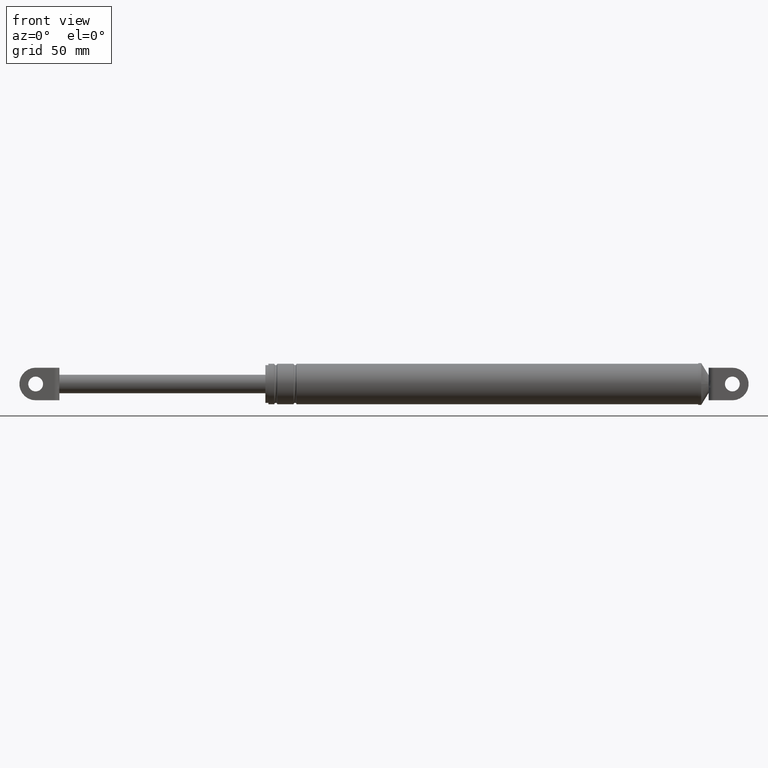
[diagram: clean part render]
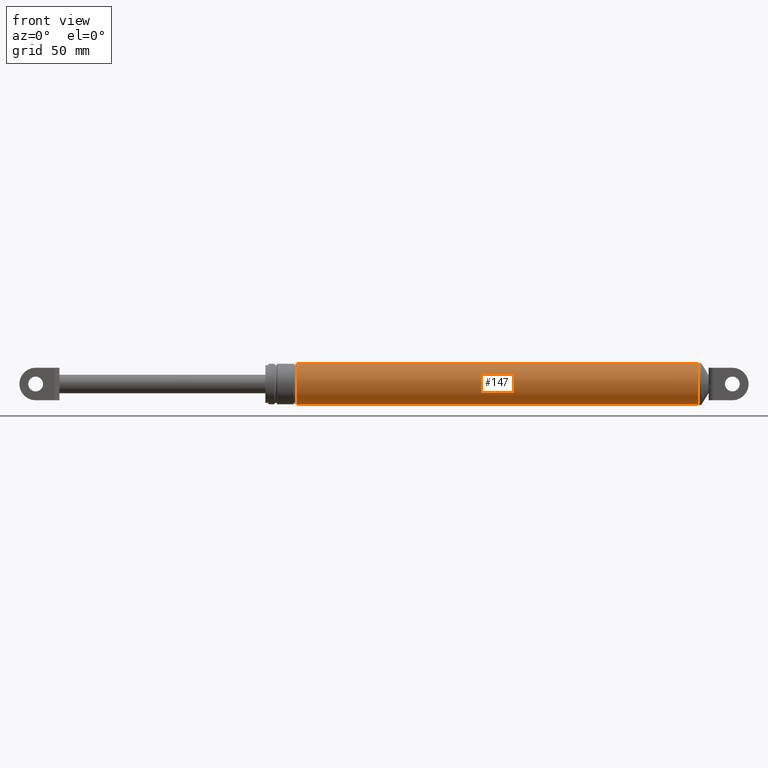
[diagram: same view with one face highlighted and labeled with its STEP entity id]
A machine part, front view. The second image highlights one B-rep face of the part: STEP entity #147.
In plain terms, the highlighted cylindrical surface (edge-blend (fillet) strip) has radius 13.7 mm, axis along (-1, -0, -0).
Its self-contained STEP definition (entity closure, byte-faithful):
#147=ADVANCED_FACE('',(#533),#532,.T.);
#532=CYLINDRICAL_SURFACE('',#1542,1.37000000000E+001);
#533=FACE_OUTER_BOUND('',#1543,.T.);
#1539=CARTESIAN_POINT('',(1.36683871323E+002,-1.78323129188E-014,1.88612980532E+002));
#1540=DIRECTION('',(-1.00000000000E+000,-0.00000000000E+000,-0.00000000000E+000));
#1541=DIRECTION('',(0.00000000000E+000,-1.30162868020E-015,1.00000000000E+000));
#1542=AXIS2_PLACEMENT_3D('',#1539,#1540,#1541);
#1543=EDGE_LOOP('',(#2133,#2134,#2135,#2136));
#2133=ORIENTED_EDGE('',*,*,#2292,.T.);
#2134=ORIENTED_EDGE('',*,*,#2371,.T.);
#2135=ORIENTED_EDGE('',*,*,#2370,.F.);
#2136=ORIENTED_EDGE('',*,*,#2372,.F.);
#2292=EDGE_CURVE('',#2486,#2485,#2493,.T.);
#2370=EDGE_CURVE('',#2996,#2989,#3009,.T.);
#2371=EDGE_CURVE('',#2485,#2989,#3015,.T.);
#2372=EDGE_CURVE('',#2486,#2996,#3021,.T.);
#2485=VERTEX_POINT('',#3521);
#2486=VERTEX_POINT('',#3522);
#2493=CIRCLE('',#3530,1.37000000000E+001);
#2989=VERTEX_POINT('',#3843);
#2996=VERTEX_POINT('',#3849);
#3009=CIRCLE('',#3864,1.37000000000E+001);
#3015=(BOUNDED_CURVE() B_SPLINE_CURVE(1,(#3865,#3866),.UNSPECIFIED.,.F.,.F.) B_SPLINE_CURVE_WITH_KNOTS((2,2),(3.43642611991E-002,9.65635738753E-001),.UNSPECIFIED.) CURVE() GEOMETRIC_REPRESENTATION_ITEM() RATIONAL_B_SPLINE_CURVE((1.00000000000E+000,1.00000000000E+000)) REPRESENTATION_ITEM('') );
#3021=(BOUNDED_CURVE() B_SPLINE_CURVE(1,(#3867,#3868),.UNSPECIFIED.,.F.,.F.) B_SPLINE_CURVE_WITH_KNOTS((2,2),(3.43642611684E-002,9.65635738832E-001),.UNSPECIFIED.) CURVE() GEOMETRIC_REPRESENTATION_ITEM() RATIONAL_B_SPLINE_CURVE((7.50000000000E-001,7.50000000000E-001)) REPRESENTATION_ITEM('') );
#3521=CARTESIAN_POINT('',(4.17683871323E+002,2.30926389122E-014,2.02312980532E+002));
#3522=CARTESIAN_POINT('',(4.17683871323E+002,7.52689430633E-015,1.74912980532E+002));
#3527=CARTESIAN_POINT('',(4.17683871323E+002,1.12117697108E-014,1.88612980532E+002));
#3528=DIRECTION('',(-1.00000000000E+000,0.00000000000E+000,0.00000000000E+000));
#3529=DIRECTION('',(-0.00000000000E+000,-8.35518852861E-016,-1.00000000000E+000));
#3530=AXIS2_PLACEMENT_3D('',#3527,#3528,#3529);
#3843=CARTESIAN_POINT('',(1.46683871323E+002,2.30926389122E-014,2.02312980532E+002));
#3849=CARTESIAN_POINT('',(1.46683871323E+002,7.52689430633E-015,1.74912980532E+002));
#3861=CARTESIAN_POINT('',(1.46683871323E+002,1.12117697108E-014,1.88612980532E+002));
#3862=DIRECTION('',(-1.00000000000E+000,0.00000000000E+000,0.00000000000E+000));
#3863=DIRECTION('',(-0.00000000000E+000,-8.35518852861E-016,-1.00000000000E+000));
#3864=AXIS2_PLACEMENT_3D('',#3861,#3862,#3863);
#3865=CARTESIAN_POINT('',(4.17683871314E+002,-3.56646258375E-014,2.02312980532E+002));
#3866=CARTESIAN_POINT('',(1.46683871346E+002,-3.56646258375E-014,2.02312980532E+002));
#3867=CARTESIAN_POINT('',(4.17683871323E+002,-5.92118946467E-016,1.74912980532E+002));
#3868=CARTESIAN_POINT('',(1.46683871323E+002,-5.92118946467E-016,1.74912980532E+002));